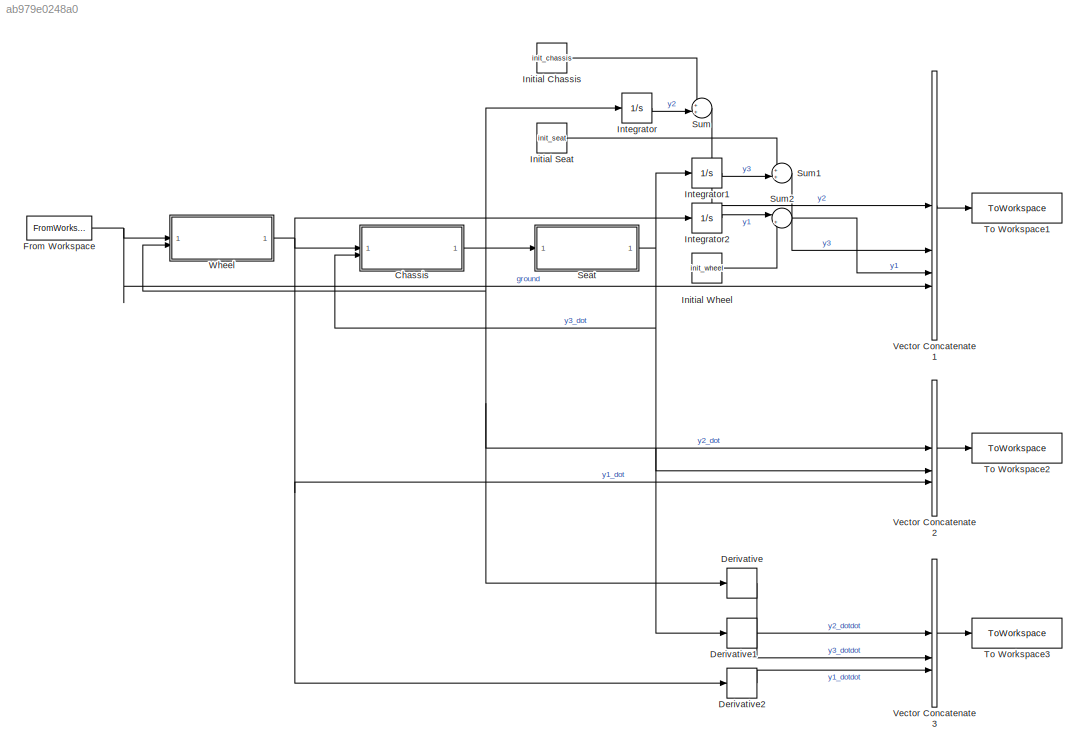
MODEL slx_ab979e0248a0
KIND model
CONFIG AbsTol = auto
CONFIG EnableMultiTasking = off
CONFIG FixedStep = auto
CONFIG MaxStep = auto
CONFIG MinStep = auto
CONFIG RelTol = 1e-3
CONFIG SampleTimeConstraint = Unconstrained
CONFIG SolverName = VariableStepAuto
CONFIG StartTime = 0.0
CONFIG StopTime = t_stop
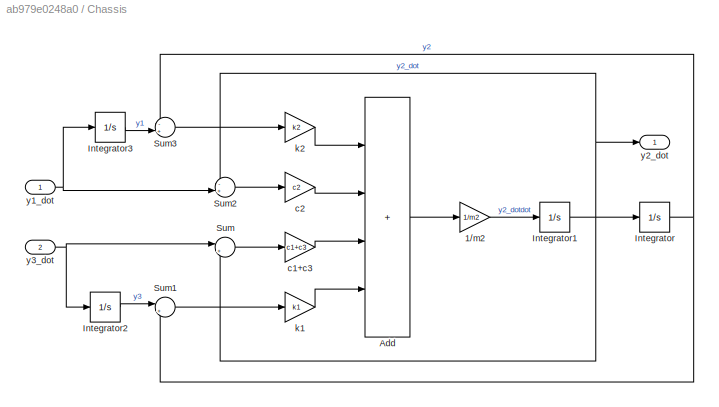
BLOCK [SubSystem] Chassis
BLOCK [Gain] Chassis/1//m2
  Gain = 1/m2
BLOCK [Sum] Chassis/Add
  IconShape = rectangular
  Inputs = ++++
BLOCK [Integrator] Chassis/Integrator
BLOCK [Integrator] Chassis/Integrator1
BLOCK [Integrator] Chassis/Integrator2
BLOCK [Integrator] Chassis/Integrator3
BLOCK [Sum] Chassis/Sum
  Inputs = |+-
BLOCK [Sum] Chassis/Sum1
  Inputs = |+-
BLOCK [Sum] Chassis/Sum2
  Inputs = -+|
BLOCK [Sum] Chassis/Sum3
  Inputs = -+|
BLOCK [Gain] Chassis/c1+c3
  Gain = c1+c3
BLOCK [Gain] Chassis/c2
  Gain = c2
BLOCK [Gain] Chassis/k1
  Gain = k1
BLOCK [Gain] Chassis/k2
  Gain = k2
BLOCK [Inport] Chassis/y1_dot
BLOCK [Outport] Chassis/y2_dot
BLOCK [Inport] Chassis/y3_dot
  Port = 2
BLOCK [Derivative] Derivative
BLOCK [Derivative] Derivative1
BLOCK [Derivative] Derivative2
BLOCK [FromWorkspace] From Workspace
  VariableName = profile
BLOCK [Constant] Initial Chassis
  Value = init_chassis
BLOCK [Constant] Initial Seat
  Value = init_seat
BLOCK [Constant] Initial Wheel
  Value = init_wheel
BLOCK [Integrator] Integrator
BLOCK [Integrator] Integrator1
BLOCK [Integrator] Integrator2
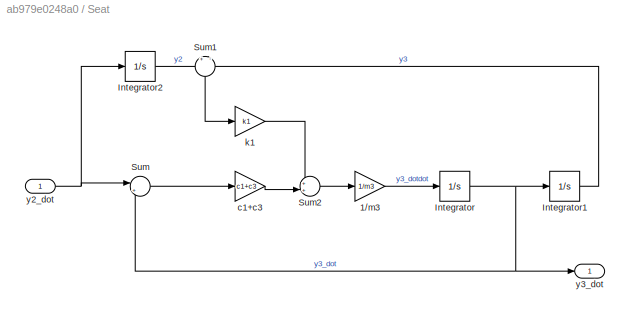
BLOCK [SubSystem] Seat
BLOCK [Gain] Seat/1//m3
  Gain = 1/m3
BLOCK [Integrator] Seat/Integrator
BLOCK [Integrator] Seat/Integrator1
BLOCK [Integrator] Seat/Integrator2
BLOCK [Sum] Seat/Sum
  Inputs = |+-
BLOCK [Sum] Seat/Sum1
  Inputs = +|-
  NameLocation = left
BLOCK [Sum] Seat/Sum2
  Inputs = ++|
BLOCK [Gain] Seat/c1+c3
  Gain = c1+c3
BLOCK [Gain] Seat/k1
  Gain = k1
BLOCK [Inport] Seat/y2_dot
BLOCK [Outport] Seat/y3_dot
BLOCK [Sum] Sum
  Inputs = ++|
BLOCK [Sum] Sum1
  Inputs = ++|
BLOCK [Sum] Sum2
  Inputs = |++
BLOCK [ToWorkspace] To Workspace1
  FixptAsFi = on
  MaxDataPoints = inf
  SampleTime = -1
  SaveFormat = Structure With Time
  VariableName = displacement
BLOCK [ToWorkspace] To Workspace2
  FixptAsFi = on
  MaxDataPoints = inf
  SampleTime = -1
  SaveFormat = Structure With Time
  VariableName = velocity
BLOCK [ToWorkspace] To Workspace3
  FixptAsFi = on
  MaxDataPoints = inf
  SampleTime = -1
  SaveFormat = Structure With Time
  VariableName = acceleration
BLOCK [Concatenate] Vector Concatenate1
  NumInputs = 4
BLOCK [Concatenate] Vector Concatenate2
  NumInputs = 3
BLOCK [Concatenate] Vector Concatenate3
  NumInputs = 3
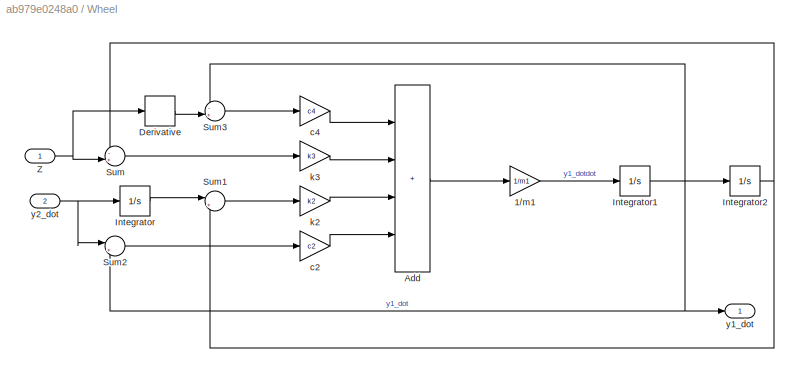
BLOCK [SubSystem] Wheel
BLOCK [Gain] Wheel/1//m1
  Gain = 1/m1
BLOCK [Sum] Wheel/Add
  IconShape = rectangular
  Inputs = ++++
BLOCK [Derivative] Wheel/Derivative
BLOCK [Integrator] Wheel/Integrator
BLOCK [Integrator] Wheel/Integrator1
BLOCK [Integrator] Wheel/Integrator2
BLOCK [Sum] Wheel/Sum
  Inputs = -+|
BLOCK [Sum] Wheel/Sum1
  Inputs = |+-
BLOCK [Sum] Wheel/Sum2
  Inputs = |+-
BLOCK [Sum] Wheel/Sum3
  Inputs = -+|
BLOCK [Inport] Wheel/Z
BLOCK [Gain] Wheel/c2
  Gain = c2
BLOCK [Gain] Wheel/c4
  Gain = c4
BLOCK [Gain] Wheel/k2
  Gain = k2
BLOCK [Gain] Wheel/k3
  Gain = k3
BLOCK [Outport] Wheel/y1_dot
BLOCK [Inport] Wheel/y2_dot
  Port = 2
LINE Chassis/1//m2:1 -> Chassis/Integrator1:1
LINE Chassis/Add:1 -> Chassis/1//m2:1
NET Chassis/Integrator1:1 -> Chassis/Integrator:1, Chassis/Sum2:1, Chassis/Sum:2, Chassis/y2_dot:1
LINE Chassis/Integrator2:1 -> Chassis/Sum1:1
LINE Chassis/Integrator3:1 -> Chassis/Sum3:2
NET Chassis/Integrator:1 -> Chassis/Sum1:2, Chassis/Sum3:1
LINE Chassis/Sum1:1 -> Chassis/k1:1
LINE Chassis/Sum2:1 -> Chassis/c2:1
LINE Chassis/Sum3:1 -> Chassis/k2:1
LINE Chassis/Sum:1 -> Chassis/c1+c3:1
LINE Chassis/c1+c3:1 -> Chassis/Add:3
LINE Chassis/c2:1 -> Chassis/Add:2
LINE Chassis/k1:1 -> Chassis/Add:4
LINE Chassis/k2:1 -> Chassis/Add:1
NET Chassis/y1_dot:1 -> Chassis/Integrator3:1, Chassis/Sum2:2
NET Chassis/y3_dot:1 -> Chassis/Integrator2:1, Chassis/Sum:1
NET Chassis:1 -> Derivative:1, Integrator:1, Seat:1, Vector Concatenate2:1, Wheel:2
LINE Derivative1:1 -> Vector Concatenate3:2
LINE Derivative2:1 -> Vector Concatenate3:3
LINE Derivative:1 -> Vector Concatenate3:1
NET From Workspace:1 -> Vector Concatenate1:4, Wheel:1
LINE Initial Chassis:1 -> Sum:1
LINE Initial Seat:1 -> Sum1:1
LINE Initial Wheel:1 -> Sum2:2
LINE Integrator1:1 -> Sum1:2
LINE Integrator2:1 -> Sum2:1
LINE Integrator:1 -> Sum:2
LINE Seat/1//m3:1 -> Seat/Integrator:1
LINE Seat/Integrator1:1 -> Seat/Sum1:2
LINE Seat/Integrator2:1 -> Seat/Sum1:1
NET Seat/Integrator:1 -> Seat/Integrator1:1, Seat/Sum:2, Seat/y3_dot:1
LINE Seat/Sum1:1 -> Seat/k1:1
LINE Seat/Sum2:1 -> Seat/1//m3:1
LINE Seat/Sum:1 -> Seat/c1+c3:1
LINE Seat/c1+c3:1 -> Seat/Sum2:2
LINE Seat/k1:1 -> Seat/Sum2:1
NET Seat/y2_dot:1 -> Seat/Integrator2:1, Seat/Sum:1
NET Seat:1 -> Chassis:2, Derivative1:1, Integrator1:1, Vector Concatenate2:2
LINE Sum1:1 -> Vector Concatenate1:2
LINE Sum2:1 -> Vector Concatenate1:3
LINE Sum:1 -> Vector Concatenate1:1
LINE Vector Concatenate1:1 -> To Workspace1:1
LINE Vector Concatenate2:1 -> To Workspace2:1
LINE Vector Concatenate3:1 -> To Workspace3:1
LINE Wheel/1//m1:1 -> Wheel/Integrator1:1
LINE Wheel/Add:1 -> Wheel/1//m1:1
LINE Wheel/Derivative:1 -> Wheel/Sum3:2
NET Wheel/Integrator1:1 -> Wheel/Integrator2:1, Wheel/Sum2:2, Wheel/Sum3:1, Wheel/y1_dot:1
NET Wheel/Integrator2:1 -> Wheel/Sum1:2, Wheel/Sum:1
LINE Wheel/Integrator:1 -> Wheel/Sum1:1
LINE Wheel/Sum1:1 -> Wheel/k2:1
LINE Wheel/Sum2:1 -> Wheel/c2:1
LINE Wheel/Sum3:1 -> Wheel/c4:1
LINE Wheel/Sum:1 -> Wheel/k3:1
NET Wheel/Z:1 -> Wheel/Derivative:1, Wheel/Sum:2
LINE Wheel/c2:1 -> Wheel/Add:4
LINE Wheel/c4:1 -> Wheel/Add:1
LINE Wheel/k2:1 -> Wheel/Add:3
LINE Wheel/k3:1 -> Wheel/Add:2
NET Wheel/y2_dot:1 -> Wheel/Integrator:1, Wheel/Sum2:1
NET Wheel:1 -> Chassis:1, Derivative2:1, Integrator2:1, Vector Concatenate2:3
note: NET lines group one-source signal fan-out (src -> all destinations, sorted); 1:1 wires keep LINE
